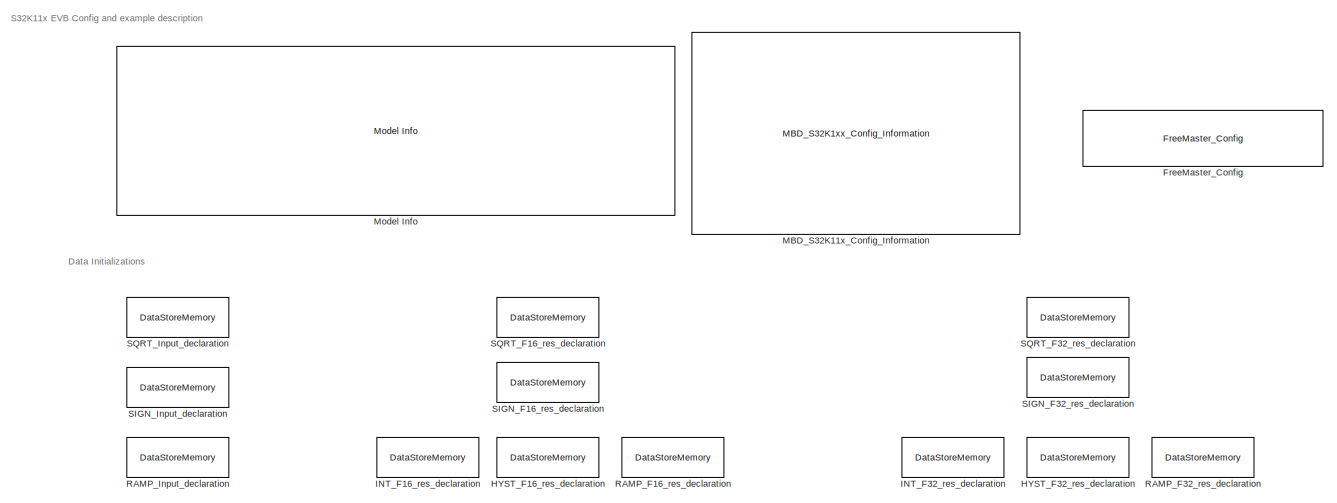
[diagram: root canvas - part 1/5, full width, top band]
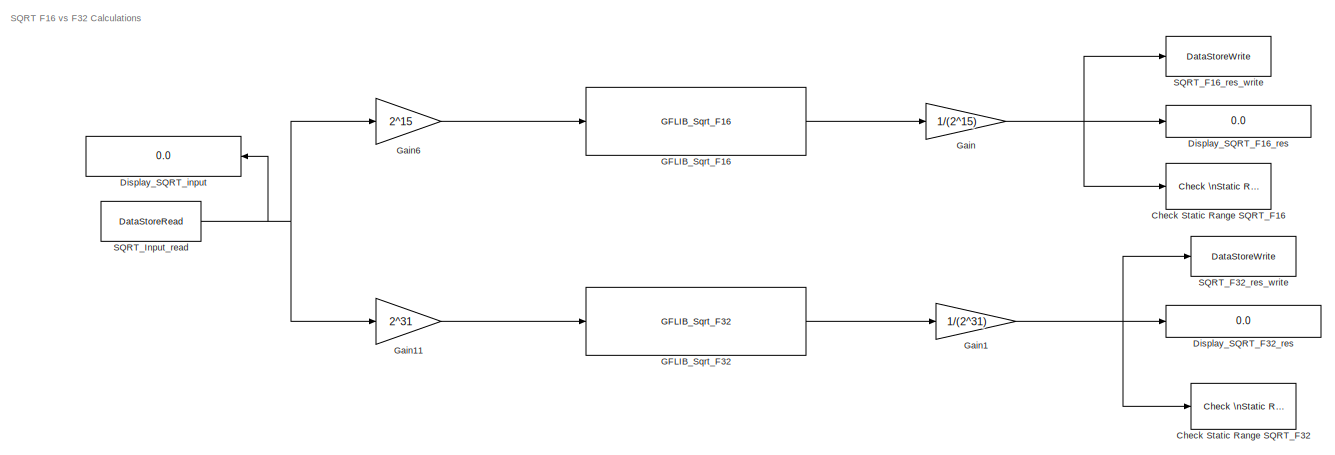
[diagram: root canvas - part 2/5, full width, middle band]
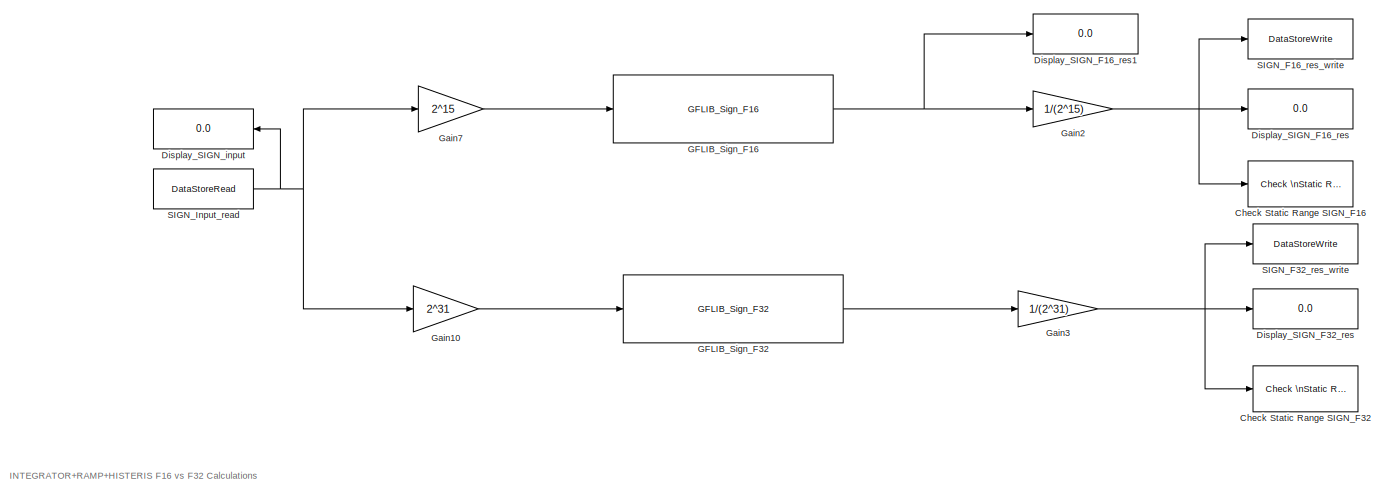
[diagram: root canvas - part 3/5, full width, bottom band]
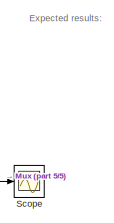
[diagram: root canvas - part 4/5, bottom right region]
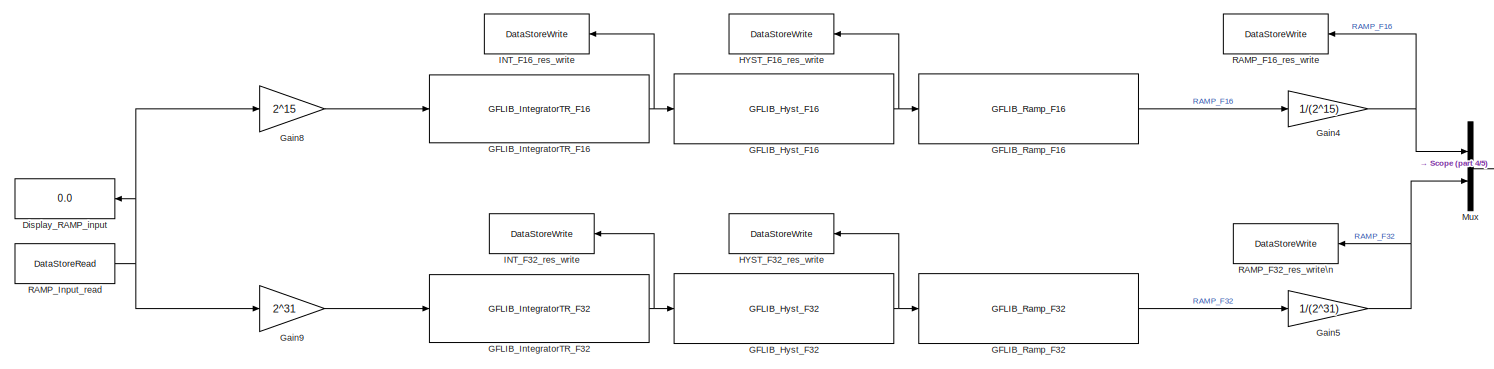
[diagram: root canvas - part 5/5, full width, bottom band]
MODEL ammclib_gflib_miscellaneous_s32k11x
KIND model
CONFIG InitFcn = mbd_s32k_consistency_checks(bdroot(gcs));
BLOCK [Reference] Check Static Range SIGN_F16   REF=simulink/Model\nVerification/Check \nStatic Range
  Description = -1 <= u <= 1
  Ports = [1]
  SID = 648
  SourceBlock = simulink/Model\nVerification/Check \nStatic Range
  SourceProductBaseCode = SL
  SourceProductName = Simulink
  SourceType = Checks_SRange
  enabled = on
  export = off
  icon = graphic
  max = 1
  max_included = on
  min = -1
  min_included = on
  stopWhenAssertionFail = on
BLOCK [Reference] Check Static Range SIGN_F32  REF=simulink/Model\nVerification/Check \nStatic Range
  Description = -1 <= u <= 1
  Ports = [1]
  SID = 649
  SourceBlock = simulink/Model\nVerification/Check \nStatic Range
  SourceProductBaseCode = SL
  SourceProductName = Simulink
  SourceType = Checks_SRange
  enabled = on
  export = off
  icon = graphic
  max = 1
  max_included = on
  min = -1
  min_included = on
  stopWhenAssertionFail = on
BLOCK [Reference] Check Static Range SQRT_F16   REF=simulink/Model\nVerification/Check \nStatic Range
  Description = 0.7 <= u <= 0.8
  Ports = [1]
  SID = 585
  SourceBlock = simulink/Model\nVerification/Check \nStatic Range
  SourceProductBaseCode = SL
  SourceProductName = Simulink
  SourceType = Checks_SRange
  enabled = on
  export = off
  icon = graphic
  max = 0.8
  max_included = on
  min = 0.7
  min_included = on
  stopWhenAssertionFail = on
BLOCK [Reference] Check Static Range SQRT_F32  REF=simulink/Model\nVerification/Check \nStatic Range
  Description = 0.7 <= u <= 0.8
  Ports = [1]
  SID = 641
  SourceBlock = simulink/Model\nVerification/Check \nStatic Range
  SourceProductBaseCode = SL
  SourceProductName = Simulink
  SourceType = Checks_SRange
  enabled = on
  export = off
  icon = graphic
  max = 0.8
  max_included = on
  min = 0.7
  min_included = on
  stopWhenAssertionFail = on
BLOCK [Display] Display_RAMP_input
  Decimation = 1
  Format = long
  Ports = [1]
  SID = 675
BLOCK [Display] Display_SIGN_F16_res
  Decimation = 1
  Format = long
  Ports = [1]
  SID = 651
BLOCK [Display] Display_SIGN_F16_res1
  Decimation = 1
  Format = long
  Ports = [1]
  SID = 754
BLOCK [Display] Display_SIGN_F32_res
  Decimation = 1
  Format = long
  Ports = [1]
  SID = 652
BLOCK [Display] Display_SIGN_input
  Decimation = 1
  Format = long
  Ports = [1]
  SID = 654
BLOCK [Display] Display_SQRT_F16_res
  Decimation = 1
  Format = long
  Ports = [1]
  SID = 579
BLOCK [Display] Display_SQRT_F32_res
  Decimation = 1
  Format = long
  Ports = [1]
  SID = 638
BLOCK [Display] Display_SQRT_input
  Decimation = 1
  Format = long
  Ports = [1]
  SID = 584
BLOCK [Reference] FreeMaster_Config  REF=mbd_s32k1xx_ec_toolbox/Utility Blocks/FreeMaster_Config
  Ports = []
  SID = 782
  SourceBlock = mbd_s32k1xx_ec_toolbox/Utility Blocks/FreeMaster_Config
  SourceType = fm_s32k_config
  baudrate = 19200
  comm_buffer_size = 255
  comm_buffer_size_auto = on
  comm_rqueue_size = 32
  comm_rqueue_size_default = on
  interface = LPUART0
  isr_prio = 3
  max_rec_vars = 8
  max_scope_vars = 8
  mode = Short Interrupt
  rec_buff_size = 1024
  rec_timebase = 0
  rec_timebase_unit = seconds
  rxd = PTB0: [LPUART0_RX | Receive]
  show_adv_opts = on
  txd = PTB1: [LPUART0_TX | Transmit]
  use_recorder = on
  use_scope = on
BLOCK [Reference] GFLIB_Hyst_F16  REF=ammclib_bam_s32k11x/GFLIB/bam_f16/GFLIB_Hyst_F16  (lib defined in mdl_5e542557caf3)
  Ports = [1, 1]
  SID = 682
  SourceBlock = ammclib_bam_s32k11x/GFLIB/bam_f16/GFLIB_Hyst_F16
  SourceType = GFLIB_Hyst_F16
  f16HystOff = -(2^15-1)/2
  f16HystOn = (2^15-1)/2
  f16OutValOff = -0.03*(2^15-1)
  f16OutValOn = 0.03*(2^15-1)
BLOCK [Reference] GFLIB_Hyst_F32  REF=ammclib_bam_s32k11x/GFLIB/bam_f32/GFLIB_Hyst_F32  (lib defined in mdl_5e542557caf3)
  Ports = [1, 1]
  SID = 695
  SourceBlock = ammclib_bam_s32k11x/GFLIB/bam_f32/GFLIB_Hyst_F32
  SourceType = GFLIB_Hyst_F32
  f32HystOff = -(2^31-1)/2
  f32HystOn = (2^31-1)/2
  f32OutValOff = -0.03*(2^31-1)
  f32OutValOn = 0.03*(2^31-1)
BLOCK [Reference] GFLIB_IntegratorTR_F16  REF=ammclib_bam_s32k11x/GFLIB/bam_f16/GFLIB_IntegratorTR_F16  (lib defined in mdl_5e542557caf3)
  Ports = [1, 1]
  SID = 678
  SourceBlock = ammclib_bam_s32k11x/GFLIB/bam_f16/GFLIB_IntegratorTR_F16
  SourceType = GFLIB_IntegratorTR_F16
  f16C1 = 0.003*(2^15-1)
  u16NShift = 0
BLOCK [Reference] GFLIB_IntegratorTR_F32  REF=ammclib_bam_s32k11x/GFLIB/bam_f32/GFLIB_IntegratorTR_F32  (lib defined in mdl_5e542557caf3)
  Ports = [1, 1]
  SID = 694
  SourceBlock = ammclib_bam_s32k11x/GFLIB/bam_f32/GFLIB_IntegratorTR_F32
  SourceType = GFLIB_IntegratorTR_F32
  f32C1 = 0.003*(2^31-1)
  u16NShift = 0
BLOCK [Reference] GFLIB_Ramp_F16  REF=ammclib_bam_s32k11x/GFLIB/bam_f16/GFLIB_Ramp_F16  (lib defined in mdl_5e542557caf3)
  Ports = [1, 1]
  SID = 680
  SourceBlock = ammclib_bam_s32k11x/GFLIB/bam_f16/GFLIB_Ramp_F16
  SourceType = GFLIB_Ramp
  f16RampDown = 0.0001*(2^15-1)
  f16RampUp = 0.0001*(2^15-1)
BLOCK [Reference] GFLIB_Ramp_F32  REF=ammclib_bam_s32k11x/GFLIB/bam_f32/GFLIB_Ramp_F32  (lib defined in mdl_5e542557caf3)
  Ports = [1, 1]
  SID = 696
  SourceBlock = ammclib_bam_s32k11x/GFLIB/bam_f32/GFLIB_Ramp_F32
  SourceType = GFLIB_Ramp
  f32RampDown = 0.0001*(2^31-1)
  f32RampUp = 0.0001*(2^31-1)
BLOCK [Reference] GFLIB_Sign_F16  REF=ammclib_bam_s32k11x/GFLIB/bam_f16/GFLIB_Sign_F16  (lib defined in mdl_5e542557caf3)
  Ports = [1, 1]
  SID = 669
  SourceBlock = ammclib_bam_s32k11x/GFLIB/bam_f16/GFLIB_Sign_F16
  SourceType = GFLIB_Sign_F16
BLOCK [Reference] GFLIB_Sign_F32  REF=ammclib_bam_s32k11x/GFLIB/bam_f32/GFLIB_Sign_F32  (lib defined in mdl_5e542557caf3)
  Ports = [1, 1]
  SID = 668
  SourceBlock = ammclib_bam_s32k11x/GFLIB/bam_f32/GFLIB_Sign_F32
  SourceType = GFLIB_Sign_F32
BLOCK [Reference] GFLIB_Sqrt_F16  REF=ammclib_bam_s32k11x/GFLIB/bam_f16/GFLIB_Sqrt_F16  (lib defined in mdl_5e542557caf3)
  Ports = [1, 1]
  SID = 632
  SourceBlock = ammclib_bam_s32k11x/GFLIB/bam_f16/GFLIB_Sqrt_F16
  SourceType = GFLIB_Sqrt_F16
BLOCK [Reference] GFLIB_Sqrt_F32  REF=ammclib_bam_s32k11x/GFLIB/bam_f32/GFLIB_Sqrt_F32  (lib defined in mdl_5e542557caf3)
  Ports = [1, 1]
  SID = 634
  SourceBlock = ammclib_bam_s32k11x/GFLIB/bam_f32/GFLIB_Sqrt_F32
  SourceType = GFLIB_Sqrt_F32
BLOCK [Gain] Gain
  Gain = 1/(2^15)
  OutDataTypeStr = Inherit: Inherit via back propagation
  ParamDataTypeStr = Inherit: Inherit via internal rule
  SID = 768
  SaturateOnIntegerOverflow = off
BLOCK [Gain] Gain1
  Gain = 1/(2^31)
  OutDataTypeStr = Inherit: Inherit via back propagation
  ParamDataTypeStr = Inherit: Inherit via internal rule
  SID = 769
  SaturateOnIntegerOverflow = off
BLOCK [Gain] Gain10
  Gain = 2^31
  OutDataTypeStr = int32
  ParamDataTypeStr = int32
  SID = 780
  SaturateOnIntegerOverflow = off
BLOCK [Gain] Gain11
  Gain = 2^31
  OutDataTypeStr = int32
  ParamDataTypeStr = int32
  SID = 781
  SaturateOnIntegerOverflow = off
BLOCK [Gain] Gain2
  Gain = 1/(2^15)
  OutDataTypeStr = Inherit: Inherit via back propagation
  ParamDataTypeStr = Inherit: Inherit via internal rule
  SID = 770
  SaturateOnIntegerOverflow = off
BLOCK [Gain] Gain3
  Gain = 1/(2^31)
  OutDataTypeStr = Inherit: Inherit via back propagation
  ParamDataTypeStr = Inherit: Inherit via internal rule
  SID = 771
  SaturateOnIntegerOverflow = off
BLOCK [Gain] Gain4
  Gain = 1/(2^15)
  OutDataTypeStr = Inherit: Inherit via back propagation
  ParamDataTypeStr = Inherit: Inherit via internal rule
  SID = 772
  SaturateOnIntegerOverflow = off
BLOCK [Gain] Gain5
  Gain = 1/(2^31)
  OutDataTypeStr = Inherit: Inherit via back propagation
  ParamDataTypeStr = Inherit: Inherit via internal rule
  SID = 773
  SaturateOnIntegerOverflow = off
BLOCK [Gain] Gain6
  Gain = 2^15
  OutDataTypeStr = int16
  ParamDataTypeStr = int32
  SID = 776
  SaturateOnIntegerOverflow = off
BLOCK [Gain] Gain7
  Gain = 2^15
  OutDataTypeStr = int16
  ParamDataTypeStr = int32
  SID = 777
  SaturateOnIntegerOverflow = off
BLOCK [Gain] Gain8
  Gain = 2^15
  OutDataTypeStr = int16
  ParamDataTypeStr = int32
  SID = 778
  SaturateOnIntegerOverflow = off
BLOCK [Gain] Gain9
  Gain = 2^31
  OutDataTypeStr = int32
  ParamDataTypeStr = int32
  SID = 779
  SaturateOnIntegerOverflow = off
BLOCK [DataStoreMemory] HYST_F16_res_declaration
  DataStoreName = HYST_F16_res
  OutDataTypeStr = int16
  Priority = 2
  ReadBeforeWriteMsg = warning
  SID = 687
  ShowAdditionalParam = off
  WriteAfterReadMsg = warning
  WriteAfterWriteMsg = warning
BLOCK [DataStoreWrite] HYST_F16_res_write
  DataStoreName = HYST_F16_res
  Ports = [1]
  SID = 691
BLOCK [DataStoreMemory] HYST_F32_res_declaration
  DataStoreName = HYST_F32_res
  OutDataTypeStr = int32
  Priority = 2
  ReadBeforeWriteMsg = warning
  SID = 708
  ShowAdditionalParam = off
  WriteAfterReadMsg = warning
  WriteAfterWriteMsg = warning
BLOCK [DataStoreWrite] HYST_F32_res_write
  DataStoreName = HYST_F32_res
  Ports = [1]
  SID = 716
BLOCK [DataStoreMemory] INT_F16_res_declaration
  DataStoreName = INT_F16_res
  OutDataTypeStr = int16
  Priority = 2
  ReadBeforeWriteMsg = warning
  SID = 686
  ShowAdditionalParam = off
  WriteAfterReadMsg = warning
  WriteAfterWriteMsg = warning
BLOCK [DataStoreWrite] INT_F16_res_write
  DataStoreName = INT_F16_res
  Ports = [1]
  SID = 690
BLOCK [DataStoreMemory] INT_F32_res_declaration
  DataStoreName = INT_F32_res
  OutDataTypeStr = int32
  Priority = 2
  ReadBeforeWriteMsg = warning
  SID = 707
  ShowAdditionalParam = off
  WriteAfterReadMsg = warning
  WriteAfterWriteMsg = warning
BLOCK [DataStoreWrite] INT_F32_res_write
  DataStoreName = INT_F32_res
  Ports = [1]
  SID = 713
BLOCK [Reference] MBD_S32K11x_Config_Information  REF=mbd_s32k1xx_ec_toolbox/MBD_S32K1xx_Config_Information
  ADC_PcrCheckEnDis = on
  AMMCLIB_PcrCheckEnDis = on
  CMP_PcrCheckEnDis = on
  CSEc_PcrCheckEnDis = on
  ConfigParams_PcrCheckEnDis = on
  FM_PcrCheckEnDis = on
  FTM_Dual_Edge_Inputs_PcrCheckEnDis = on
  FTM_Hall_Sensor_Inputs_PcrCheckEnDis = on
  FTM_Input_Edge_Inputs_PcrCheckEnDis = on
  FTM_PWM_PcrCheckEnDis = on
  FTM_Quadrature_Inputs_PcrCheckEnDis = on
  FlexCAN_PcrCheckEnDis = on
  FlexIO_PcrCheckEnDis = on
  GPIO_InputPcrCheckEnDis = on
  GPIO_OutputPcrCheckEnDis = on
  LIN_PcrCheckEnDis = on
  LPI2C_PcrCheckEnDis = on
  LPSPI_PcrCheckEnDis = on
  LPTMR_PcrCheckEnDis = on
  LPUART_PcrCheckEnDis = on
  ModelRef_PcrCheckEnDis = on
  PDB0_PcrCheckEnDis = on
  PIT_PcrCheckEnDis = on
  Ports = []
  Profile_PcrCheckEnDis = on
  RTC_PcrCheckEnDis = on
  SBC_PcrCheckEnDis = on
  SID = 775
  SourceBlock = mbd_s32k1xx_ec_toolbox/MBD_S32K1xx_Config_Information
  SourceType = MBDTBX_EC_S32K
  WDOG_PcrCheckEnDis = on
  config_params = []
  disp_str = Target : S32K144-64KB_SRAM\nPackage : 100-pin\nSystem clock : 80 MHz\nXTAL clock : External 8 MHz\nCompiler : IAR\nTarget Type : FLASH\nDownload Code after build : off\nStep Tick Interrupt Priority : 15
  ds_import_enable = on
  eDMA_PcrCheckEnDis = on
  gcc_target_assemble_opts = -mcpu=cortex-m0plus -mthumb -g
  gcc_target_compile_opts = -mcpu=cortex-m0plus -mthumb -O1 -g -gstrict-dwarf
  gcc_target_default_lcf = on
  gcc_target_link_opts = -mcpu=cortex-m0plus -mthumb
  gcc_target_user_lcf = S32K116_17_flash.ld
  ghs_target_assemble_opts = -mcpu=cortexm0plus -mthumb -fsoft --gnu_asm
  ghs_target_compile_opts = -mcpu=cortexm0plus -mthumb -fsoft -Ogeneral -Wundef -Wimplicit-int -Wshadow -Wtrigraphs --no_commons --gnu_asm -gnu99 -gdwarf-2 -G
  ghs_target_default_lcf = on
  ghs_target_link_opts = -mcpu=cortexm0plus -mthumb -fsoft
  ghs_target_user_lcf = S32K116_17_flash.ld
  iar_target_assemble_opts = --thumb
  iar_target_compile_opts = --thumb -Ol -e --debug --dlib_config normal
  iar_target_default_lcf = on
  iar_target_link_opts = --no_exceptions --vfe --inline
  iar_target_user_lcf = S32K116_17_flash.icf
  mbdt_ver = 0
  mcu_steptick_prio = 3
  mcu_steptick_timer = LPIT Channel 0
  mcu_system_clock_freq = 40
  mcu_target_name = S32K116
  mcu_target_package = 48-LQFP
  mcu_target_sram_size = 17KB
  mcu_xtal_freq = External 40
  pil_download_enable = off
  pil_download_rate = 57600
  pil_opensda_drive = Custom
  pil_opensda_drive_custom = D
  pil_uart_instance = 0
  pil_uart_rx = PTB0: [LPUART0_RX | Receive]
  pil_uart_tx = PTB1: [LPUART0_TX | Transmit]
  rbl_com_port = Custom
  rbl_com_port_custom = COM1
  rbl_download_enable = on
  rbl_download_interface = OpenSDA
  rbl_restart_request = off
  rbl_start_delay = 5000
  target_compiler = GCC
  target_memory = FLASH
BLOCK [Reference] Model Info  REF=simulink/Model-Wide\nUtilities/Model Info
  DisplayStringWithTags = Model Name: %<ModelName>\n\nDescription: %<Description>
  Frame = off
  HorizontalTextAlignment = Left
  LeftAlignmentValue = 0.02
  MaskDisplayString = Model Name: ammclib_gflib_miscellaneous_s32k11x\\n\\nDescription: This model tests the AMMCLIB GFLIB SQRT, SIGN, HYST, RAMP and INTEGRATOR blocks\\n\\nValidation:\\n- Run the model in Simulation and compare the Inputs vs Outputs results.\\n- Open Freemaster (ammclib_gflib_miscellaneous_s32k11x.pmp) and compare the HW results against the Simulated ones
  Ports = []
  SID = 524
  SourceBlock = simulink/Model-Wide\nUtilities/Model Info
  SourceProductBaseCode = SL
  SourceProductName = Simulink
  SourceType = CMBlock
BLOCK [Mux] Mux
  DisplayOption = bar
  Inputs = 2
  Ports = [2, 1]
  SID = 720
BLOCK [DataStoreMemory] RAMP_F16_res_declaration
  DataStoreName = RAMP_F16_res
  OutDataTypeStr = single
  Priority = 2
  ReadBeforeWriteMsg = warning
  SID = 688
  ShowAdditionalParam = off
  WriteAfterReadMsg = warning
  WriteAfterWriteMsg = warning
BLOCK [DataStoreWrite] RAMP_F16_res_write
  DataStoreName = RAMP_F16_res
  Ports = [1]
  SID = 692
BLOCK [DataStoreMemory] RAMP_F32_res_declaration
  DataStoreName = RAMP_F32_res
  OutDataTypeStr = single
  Priority = 2
  ReadBeforeWriteMsg = warning
  SID = 709
  ShowAdditionalParam = off
  WriteAfterReadMsg = warning
  WriteAfterWriteMsg = warning
BLOCK [DataStoreWrite] RAMP_F32_res_write\n
  DataStoreName = RAMP_F32_res
  Ports = [1]
  SID = 717
BLOCK [DataStoreMemory] RAMP_Input_declaration
  DataStoreName = RAMP_Input
  InitialValue = 0.1
  OutDataTypeStr = single
  OutMax = 1
  OutMin = -1
  Priority = 1
  SID = 673
  ShowAdditionalParam = off
  WriteAfterReadMsg = warning
  WriteAfterWriteMsg = warning
BLOCK [DataStoreRead] RAMP_Input_read
  DataStoreName = RAMP_Input
  Ports = [0, 1]
  SID = 676
BLOCK [DataStoreMemory] SIGN_F16_res_declaration
  DataStoreName = SIGN_F16_res
  OutDataTypeStr = single
  Priority = 2
  ReadBeforeWriteMsg = warning
  SID = 670
  ShowAdditionalParam = off
  WriteAfterReadMsg = warning
  WriteAfterWriteMsg = warning
BLOCK [DataStoreWrite] SIGN_F16_res_write
  DataStoreName = SIGN_F16_res
  Ports = [1]
  SID = 662
BLOCK [DataStoreMemory] SIGN_F32_res_declaration
  DataStoreName = SIGN_F32_res
  OutDataTypeStr = single
  Priority = 2
  ReadBeforeWriteMsg = warning
  SID = 671
  ShowAdditionalParam = off
  WriteAfterReadMsg = warning
  WriteAfterWriteMsg = warning
BLOCK [DataStoreWrite] SIGN_F32_res_write
  DataStoreName = SIGN_F32_res
  Ports = [1]
  SID = 663
BLOCK [DataStoreMemory] SIGN_Input_declaration
  DataStoreName = SIGN_Input
  InitialValue = -0.5
  OutDataTypeStr = single
  OutMax = 1
  OutMin = -1
  Priority = 1
  SID = 647
  ShowAdditionalParam = off
  WriteAfterReadMsg = warning
  WriteAfterWriteMsg = warning
BLOCK [DataStoreRead] SIGN_Input_read
  DataStoreName = SIGN_Input
  Ports = [0, 1]
  SID = 665
BLOCK [DataStoreMemory] SQRT_F16_res_declaration
  DataStoreName = SQRT_F16_res
  OutDataTypeStr = single
  Priority = 2
  ReadBeforeWriteMsg = warning
  SID = 580
  ShowAdditionalParam = off
  WriteAfterReadMsg = warning
  WriteAfterWriteMsg = warning
BLOCK [DataStoreWrite] SQRT_F16_res_write
  DataStoreName = SQRT_F16_res
  Ports = [1]
  SID = 581
BLOCK [DataStoreMemory] SQRT_F32_res_declaration
  DataStoreName = SQRT_F32_res
  OutDataTypeStr = single
  Priority = 2
  ReadBeforeWriteMsg = warning
  SID = 610
  ShowAdditionalParam = off
  WriteAfterReadMsg = warning
  WriteAfterWriteMsg = warning
BLOCK [DataStoreWrite] SQRT_F32_res_write
  DataStoreName = SQRT_F32_res
  Ports = [1]
  SID = 636
BLOCK [DataStoreMemory] SQRT_Input_declaration
  DataStoreName = SQRT_Input
  InitialValue = 0.5
  OutDataTypeStr = single
  OutMax = 1
  OutMin = 0
  Priority = 1
  SID = 582
  ShowAdditionalParam = off
  WriteAfterReadMsg = warning
  WriteAfterWriteMsg = warning
BLOCK [DataStoreRead] SQRT_Input_read
  DataStoreName = SQRT_Input
  Ports = [0, 1]
  SID = 583
BLOCK [Scope] Scope
  NumInputPorts = 1
  Ports = [1]
  SID = 721
  ScopeSpecificationString = Simulink.scopes.TimeScopeBlockCfg('CurrentConfiguration', extmgr.ConfigurationSet(extmgr.Configuration('Core','General UI',true),extmgr.Configuration('Core','Source UI',true),extmgr.Configuration('Sources','WiredSimulink',true),extmgr.Configuration('Visuals','Time Domain',true,'SerializedDisplays',{struct('MinYLimReal','-0.0375','MaxYLimReal','0.0375','YLabelReal','','MinYLimMag','0.00000','MaxYLi...<+1636ch>
ANNOTATION (root): \n \n Expected results: \n \n
ANNOTATION (root): Data Initializations
ANNOTATION (root): INTEGRATOR+RAMP+HISTERIS F16 vs F32 Calculations
ANNOTATION (root): S32K11x EVB Config and example description
ANNOTATION (root): SQRT F16 vs F32 Calculations
NET GFLIB_Hyst_F16:1 -> GFLIB_Ramp_F16:1, HYST_F16_res_write:1
NET GFLIB_Hyst_F32:1 -> GFLIB_Ramp_F32:1, HYST_F32_res_write:1
NET GFLIB_IntegratorTR_F16:1 -> GFLIB_Hyst_F16:1, INT_F16_res_write:1
NET GFLIB_IntegratorTR_F32:1 -> GFLIB_Hyst_F32:1, INT_F32_res_write:1
LINE GFLIB_Ramp_F16:1 -> Gain4:1
LINE GFLIB_Ramp_F32:1 -> Gain5:1
NET GFLIB_Sign_F16:1 -> Display_SIGN_F16_res1:1, Gain2:1
LINE GFLIB_Sign_F32:1 -> Gain3:1
LINE GFLIB_Sqrt_F16:1 -> Gain:1
LINE GFLIB_Sqrt_F32:1 -> Gain1:1
LINE Gain10:1 -> GFLIB_Sign_F32:1
LINE Gain11:1 -> GFLIB_Sqrt_F32:1
NET Gain1:1 -> Check Static Range SQRT_F32:1, Display_SQRT_F32_res:1, SQRT_F32_res_write:1
NET Gain2:1 -> Check Static Range SIGN_F16 :1, Display_SIGN_F16_res:1, SIGN_F16_res_write:1
NET Gain3:1 -> Check Static Range SIGN_F32:1, Display_SIGN_F32_res:1, SIGN_F32_res_write:1
NET Gain4:1 -> Mux:1, RAMP_F16_res_write:1
NET Gain5:1 -> Mux:2, RAMP_F32_res_write\n:1
LINE Gain6:1 -> GFLIB_Sqrt_F16:1
LINE Gain7:1 -> GFLIB_Sign_F16:1
LINE Gain8:1 -> GFLIB_IntegratorTR_F16:1
LINE Gain9:1 -> GFLIB_IntegratorTR_F32:1
NET Gain:1 -> Check Static Range SQRT_F16 :1, Display_SQRT_F16_res:1, SQRT_F16_res_write:1
LINE Mux:1 -> Scope:1
NET RAMP_Input_read:1 -> Display_RAMP_input:1, Gain8:1, Gain9:1
NET SIGN_Input_read:1 -> Display_SIGN_input:1, Gain10:1, Gain7:1
NET SQRT_Input_read:1 -> Display_SQRT_input:1, Gain11:1, Gain6:1
note: NET lines group one-source signal fan-out (src -> all destinations, sorted); 1:1 wires keep LINE
